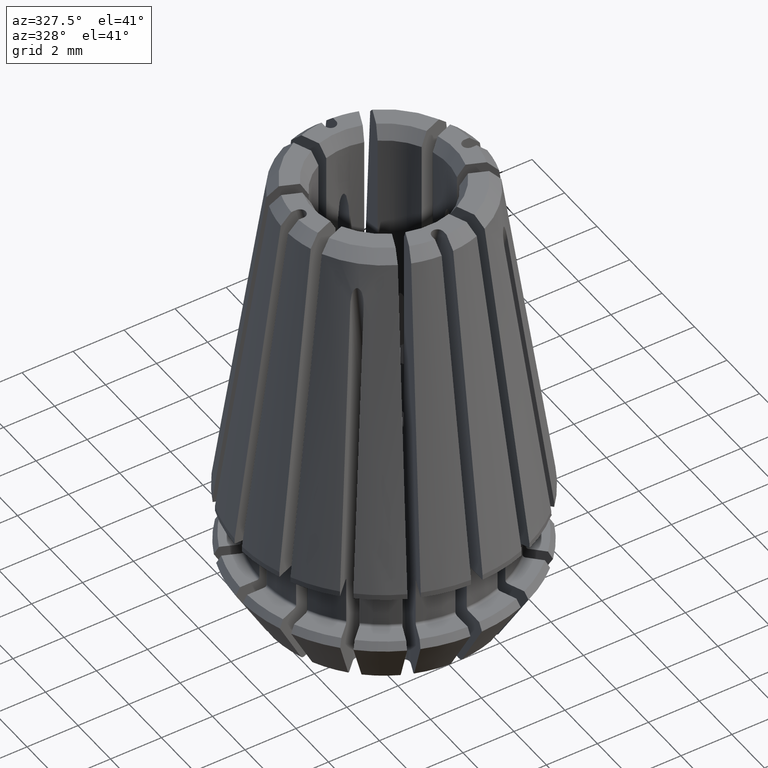
[diagram: clean part render]
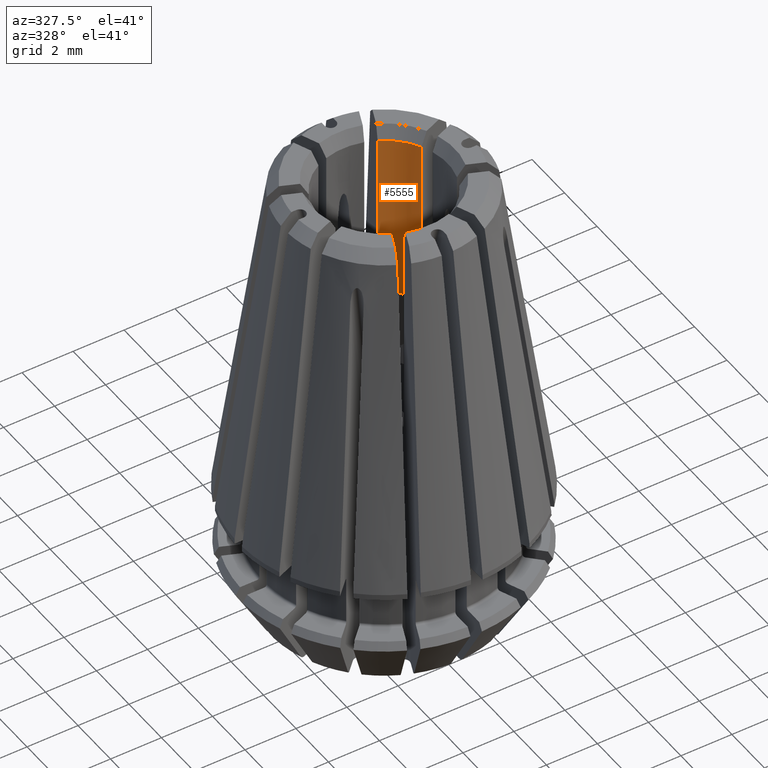
[diagram: same view with one face highlighted and labeled with its STEP entity id]
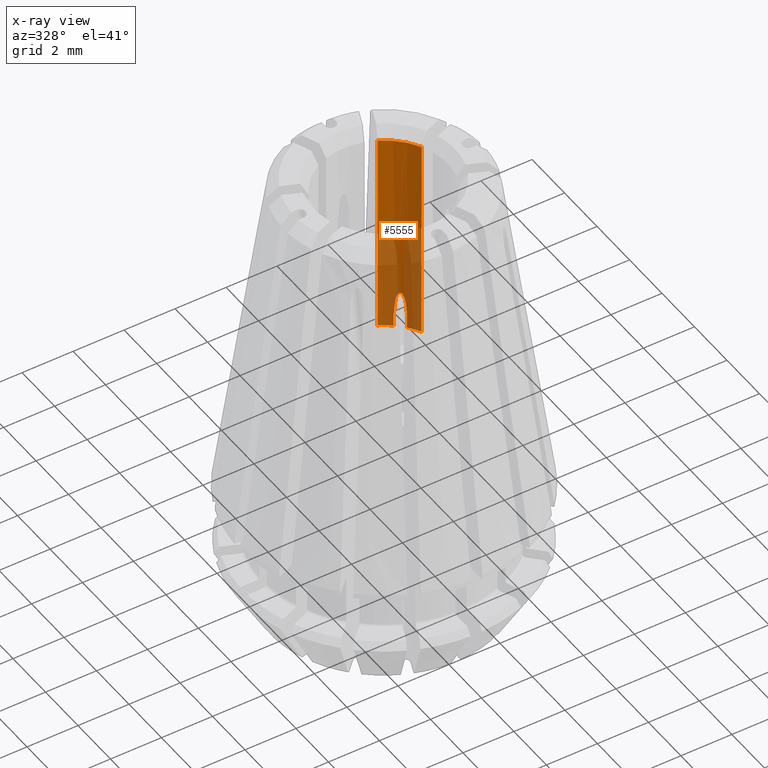
[diagram: x-ray of the same camera — body ghosted, the highlighted face saturated]
A machine part, auxiliary view. The second image highlights one B-rep face of the part: STEP entity #5555.
The next image is the same camera in x-ray: the body ghosted, the highlighted face saturated — about 43% of this face is hidden behind the body in this view.
In plain terms, the highlighted cylindrical surface (partial cylindrical patch) has radius 2.5 mm, axis along (0, 0, -1).
Its self-contained STEP definition (entity closure, byte-faithful):
#107=CYLINDRICAL_SURFACE('',#5962,2.5);
#207=B_SPLINE_CURVE_WITH_KNOTS('',3,(#8745,#8746,#8747,#8748,#8749,#8750,
#8751,#8752,#8753,#8754,#8755,#8756,#8757),.UNSPECIFIED.,.F.,.F.,(4,1,1,
1,1,1,1,1,1,1,4),(6.08676931971933E-17,0.000243167959941743,0.000486335919883425,
0.000729503879825107,0.000851087859795948,0.000972671839766789,0.00109425581973763,
0.00121583979970847,0.00145900775965015,0.00170217571959184,0.00194534367953352),
 .UNSPECIFIED.);
#498=LINE('',#8735,#842);
#499=LINE('',#8739,#843);
#500=LINE('',#8743,#844);
#501=LINE('',#8759,#845);
#842=VECTOR('',#6824,1000.);
#843=VECTOR('',#6827,1000.);
#844=VECTOR('',#6830,1000.);
#845=VECTOR('',#6831,1000.);
#1142=CIRCLE('',#5835,2.5);
#1221=CIRCLE('',#5963,2.5);
#1222=CIRCLE('',#5964,2.5);
#1698=ORIENTED_EDGE('',*,*,#3316,.F.);
#1699=ORIENTED_EDGE('',*,*,#3489,.T.);
#1700=ORIENTED_EDGE('',*,*,#3490,.T.);
#1701=ORIENTED_EDGE('',*,*,#3491,.F.);
#1702=ORIENTED_EDGE('',*,*,#3492,.F.);
#1703=ORIENTED_EDGE('',*,*,#3493,.T.);
#1704=ORIENTED_EDGE('',*,*,#3494,.T.);
#1705=ORIENTED_EDGE('',*,*,#3495,.F.);
#3316=EDGE_CURVE('',#4229,#4230,#1142,.T.);
#3489=EDGE_CURVE('',#4229,#4366,#498,.T.);
#3490=EDGE_CURVE('',#4366,#4367,#1221,.T.);
#3491=EDGE_CURVE('',#4368,#4367,#499,.T.);
#3492=EDGE_CURVE('',#4369,#4368,#1222,.T.);
#3493=EDGE_CURVE('',#4369,#4370,#500,.T.);
#3494=EDGE_CURVE('',#4370,#4371,#207,.T.);
#3495=EDGE_CURVE('',#4230,#4371,#501,.T.);
#4229=VERTEX_POINT('',#8196);
#4230=VERTEX_POINT('',#8198);
#4366=VERTEX_POINT('',#8736);
#4367=VERTEX_POINT('',#8738);
#4368=VERTEX_POINT('',#8740);
#4369=VERTEX_POINT('',#8742);
#4370=VERTEX_POINT('',#8744);
#4371=VERTEX_POINT('',#8758);
#4890=EDGE_LOOP('',(#1698,#1699,#1700,#1701,#1702,#1703,#1704,#1705));
#5184=FACE_BOUND('',#4890,.T.);
#5555=ADVANCED_FACE('',(#5184),#107,.F.);
#5835=AXIS2_PLACEMENT_3D('',#8197,#6516,#6517);
#5962=AXIS2_PLACEMENT_3D('',#8734,#6822,#6823);
#5963=AXIS2_PLACEMENT_3D('',#8737,#6825,#6826);
#5964=AXIS2_PLACEMENT_3D('',#8741,#6828,#6829);
#6516=DIRECTION('',(0.,0.,1.));
#6517=DIRECTION('',(1.,0.,0.));
#6822=DIRECTION('',(0.,0.,-1.));
#6823=DIRECTION('',(1.,0.,0.));
#6824=DIRECTION('',(0.,0.,1.));
#6825=DIRECTION('',(0.,0.,1.));
#6826=DIRECTION('',(1.,0.,0.));
#6827=DIRECTION('',(0.,0.,1.));
#6828=DIRECTION('',(0.,0.,1.));
#6829=DIRECTION('',(1.,0.,0.));
#6830=DIRECTION('',(0.,0.,1.));
#6831=DIRECTION('',(0.,0.,1.));
#8196=CARTESIAN_POINT('',(2.21422175920447,1.16069892782989,4.9));
#8197=CARTESIAN_POINT('',(0.,0.,4.9));
#8198=CARTESIAN_POINT('',(1.91969196565966,1.60149391412572,4.9));
#8734=CARTESIAN_POINT('',(0.,0.,60.));
#8735=CARTESIAN_POINT('',(2.21422175920447,1.16069892782989,60.));
#8736=CARTESIAN_POINT('',(2.21422175920447,1.16069892782989,13.));
#8737=CARTESIAN_POINT('',(0.,0.,13.));
#8738=CARTESIAN_POINT('',(1.16069892782989,2.21422175920447,13.));
#8739=CARTESIAN_POINT('',(1.16069892782989,2.21422175920447,60.));
#8740=CARTESIAN_POINT('',(1.16069892782989,2.21422175920447,4.9));
#8741=CARTESIAN_POINT('',(0.,0.,4.9));
#8742=CARTESIAN_POINT('',(1.60149391412572,1.91969196565966,4.9));
#8743=CARTESIAN_POINT('',(1.60149391412572,1.91969196565966,60.));
#8744=CARTESIAN_POINT('',(1.60149391412572,1.91969196565966,5.45882831551479));
#8745=CARTESIAN_POINT('',(1.60149391412572,1.91969196565967,5.45882831551485));
#8746=CARTESIAN_POINT('',(1.60149391412572,1.91969196565967,5.54007763184047));
#8747=CARTESIAN_POINT('',(1.60614930191321,1.91579406404601,5.70228633897999));
#8748=CARTESIAN_POINT('',(1.62566909760362,1.89945258802847,5.94369144573806));
#8749=CARTESIAN_POINT('',(1.66018680452121,1.86923429301377,6.14525440647403));
#8750=CARTESIAN_POINT('',(1.6974876085522,1.83583749018412,6.29278132577799));
#8751=CARTESIAN_POINT('',(1.77215205741167,1.76454176033622,6.40458745597714));
#8752=CARTESIAN_POINT('',(1.83748847048371,1.69558736033882,6.2841225855382));
#8753=CARTESIAN_POINT('',(1.87080223189664,1.65847827165577,6.13893934517231));
#8754=CARTESIAN_POINT('',(1.8997295654376,1.62530791345403,5.93847213821688));
#8755=CARTESIAN_POINT('',(1.9158645978428,1.60607435761552,5.70087006449406));
#8756=CARTESIAN_POINT('',(1.91969196566153,1.60149391412349,5.53938924306629));
#8757=CARTESIAN_POINT('',(1.91969196566155,1.60149391412347,5.45882831551495));
#8758=CARTESIAN_POINT('',(1.91969196565966,1.60149391412572,5.45882831551482));
#8759=CARTESIAN_POINT('',(1.91969196565966,1.60149391412572,60.));